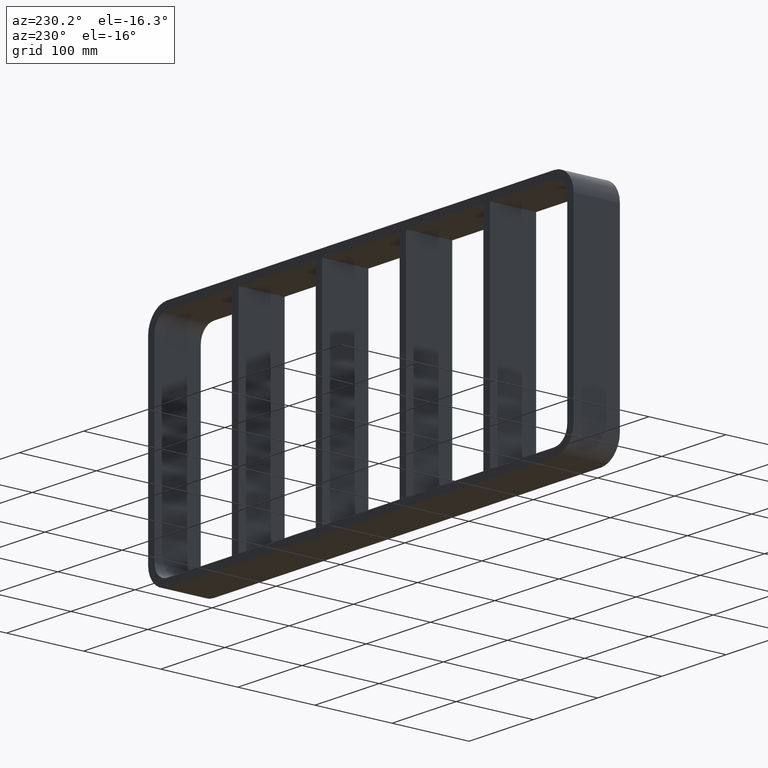
[diagram: clean part render]
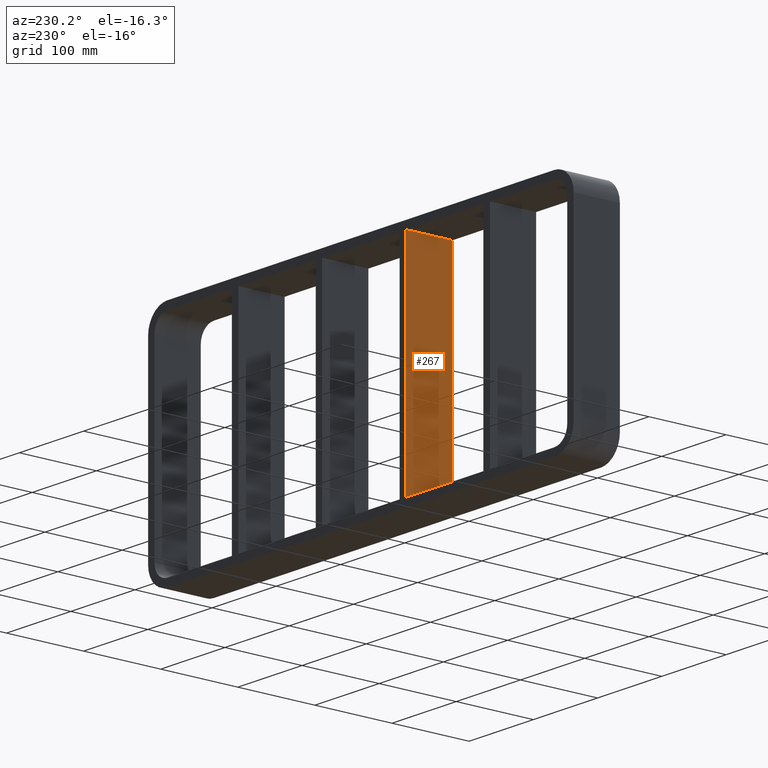
[diagram: same view with one face highlighted and labeled with its STEP entity id]
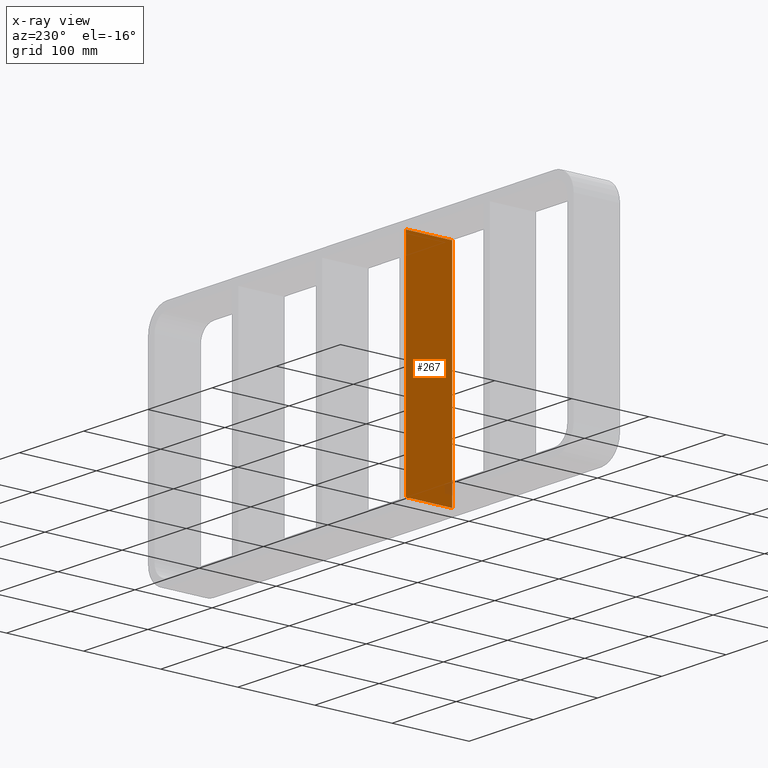
[diagram: x-ray of the same camera — body ghosted, the highlighted face saturated]
A machine part, auxiliary view. The second image highlights one B-rep face of the part: STEP entity #267.
The next image is the same camera in x-ray: the body ghosted, the highlighted face saturated — about 1% of this face is hidden behind the body in this view.
In plain terms, the highlighted planar face has unit normal (-1, 0, 0).
Its self-contained STEP definition (entity closure, byte-faithful):
#228=CARTESIAN_POINT('',(-70.250000000001364,-3.0,-139.00000000000006));
#229=DIRECTION('',(-1.0,0.0,0.0));
#230=DIRECTION('',(0.0,0.0,1.0));
#231=AXIS2_PLACEMENT_3D('',#228,#229,#230);
#232=PLANE('',#231);
#233=CARTESIAN_POINT('',(-70.250000000001364,-3.0,-139.00000000000006));
#234=VERTEX_POINT('',#233);
#235=CARTESIAN_POINT('',(-70.25000000000145,-3.0,139.0));
#236=VERTEX_POINT('',#235);
#237=CARTESIAN_POINT('',(-70.250000000001364,-3.0,-139.00000000000006));
#238=DIRECTION('',(0.0,0.0,1.0));
#239=VECTOR('',#238,278.00000000000006);
#240=LINE('',#237,#239);
#241=EDGE_CURVE('',#234,#236,#240,.T.);
#242=ORIENTED_EDGE('',*,*,#241,.T.);
#243=CARTESIAN_POINT('',(-70.25000000000145,57.0,139.0));
#244=VERTEX_POINT('',#243);
#245=CARTESIAN_POINT('',(-70.250000000001421,57.000000000000007,139.0));
#246=DIRECTION('',(0.0,-1.0,0.0));
#247=VECTOR('',#246,60.000000000000007);
#248=LINE('',#245,#247);
#249=EDGE_CURVE('',#244,#236,#248,.T.);
#250=ORIENTED_EDGE('',*,*,#249,.F.);
#251=CARTESIAN_POINT('',(-70.250000000001364,57.0,-139.00000000000006));
#252=VERTEX_POINT('',#251);
#253=CARTESIAN_POINT('',(-70.250000000001364,57.0,-139.00000000000006));
#254=DIRECTION('',(0.0,0.0,1.0));
#255=VECTOR('',#254,278.00000000000006);
#256=LINE('',#253,#255);
#257=EDGE_CURVE('',#252,#244,#256,.T.);
#258=ORIENTED_EDGE('',*,*,#257,.F.);
#259=CARTESIAN_POINT('',(-70.250000000001393,-3.0,-139.00000000000006));
#260=DIRECTION('',(0.0,1.0,0.0));
#261=VECTOR('',#260,60.000000000000007);
#262=LINE('',#259,#261);
#263=EDGE_CURVE('',#234,#252,#262,.T.);
#264=ORIENTED_EDGE('',*,*,#263,.F.);
#265=EDGE_LOOP('',(#242,#250,#258,#264));
#266=FACE_OUTER_BOUND('',#265,.T.);
#267=ADVANCED_FACE('',(#266),#232,.T.);